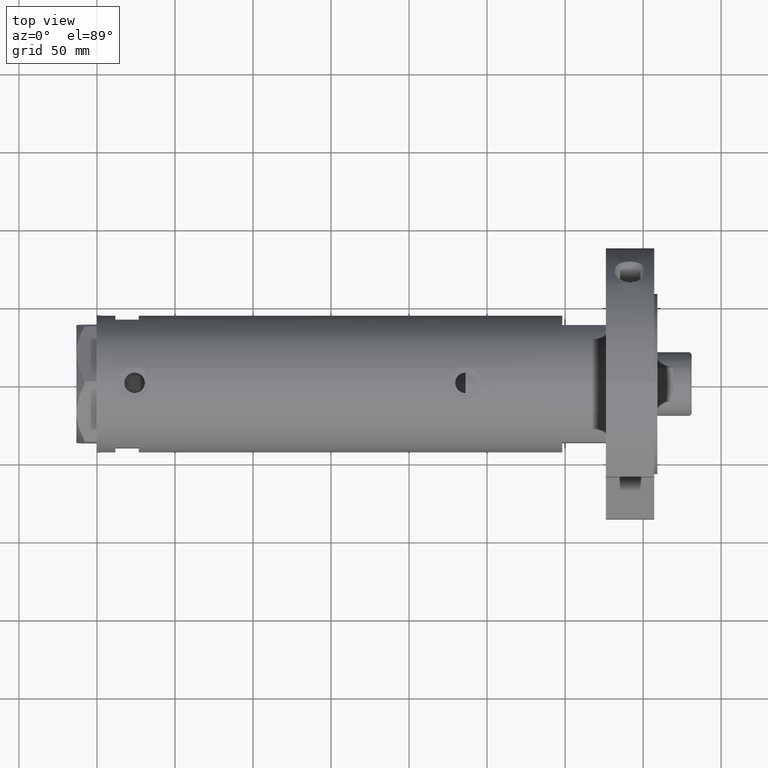
[diagram: clean part render]
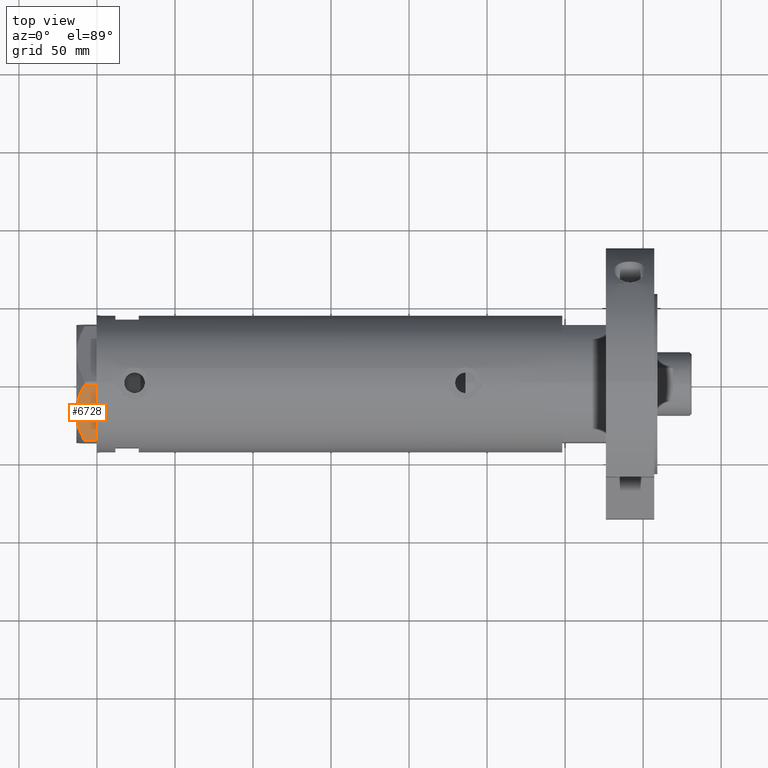
[diagram: same view with one face highlighted and labeled with its STEP entity id]
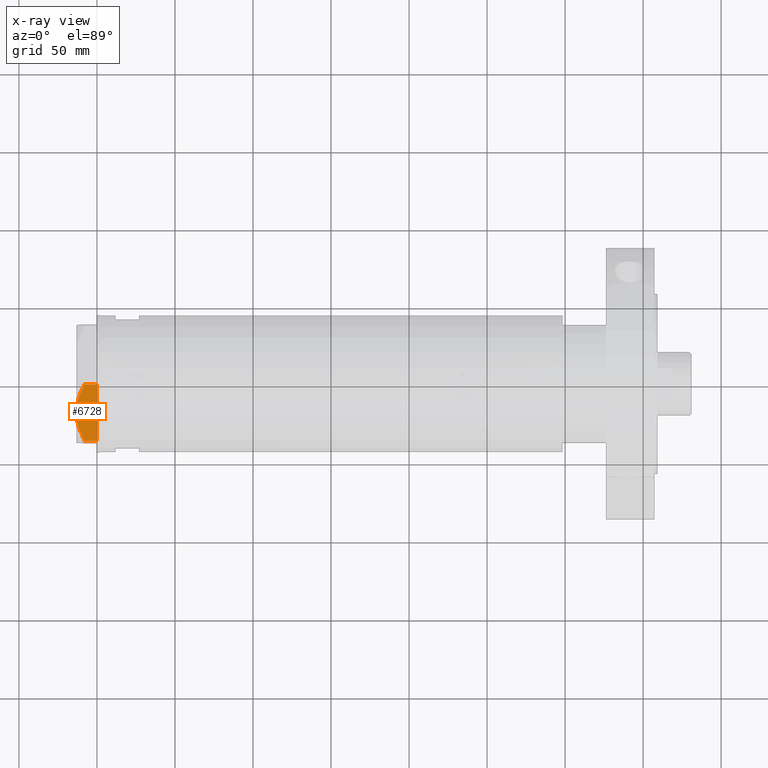
[diagram: x-ray of the same camera — body ghosted, the highlighted face saturated]
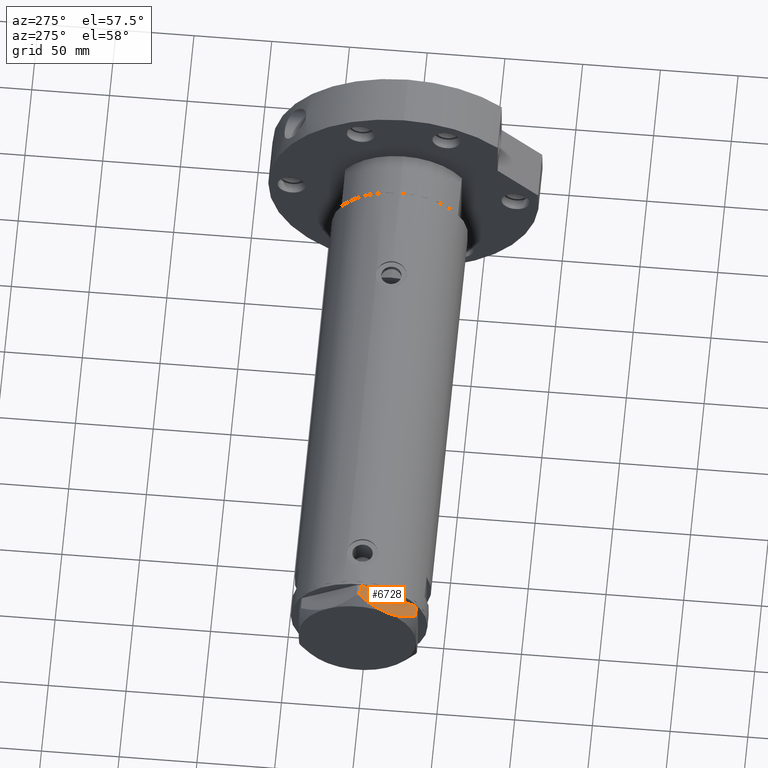
[diagram: same view with one face highlighted and labeled with its STEP entity id]
A machine part, top view. The second image highlights one B-rep face of the part: STEP entity #6728.
The next image is the same camera in x-ray: the body ghosted, the highlighted face saturated — about 0% of this face is hidden behind the body in this view.
A second angle (auxiliary view) of the same face is appended — the face is thin or edge-on in the first view.
In plain terms, the highlighted planar face has unit normal (-0, 0.5, -0.866).
Its self-contained STEP definition (entity closure, byte-faithful):
#79 = B_SPLINE_CURVE_WITH_KNOTS ( 'NONE', 3,
 ( #3138, #1855, #3602, #4172, #791, #6055, #1964, #831, #1893, #868, #7200, #4279 ),
 .UNSPECIFIED., .F., .F.,
 ( 4, 2, 2, 2, 2, 4 ),
 ( 0.02259271946349905580, 0.02789559809390664002, 0.03319847672431422425, 0.03584991603951802330, 0.03850135535472180848, 0.04380423398512939964 ),
 .UNSPECIFIED. ) ;
#135 = VERTEX_POINT ( 'NONE', #1673 ) ;
#188 = ORIENTED_EDGE ( 'NONE', *, *, #3256, .F. ) ;
#354 = CARTESIAN_POINT ( 'NONE',  ( -33.96695484073207183, -23.97911480296823683, 9.269459228581803600 ) ) ;
#472 = EDGE_CURVE ( 'NONE', #1098, #3832, #2705, .T. ) ;
#781 = CARTESIAN_POINT ( 'NONE',  ( -36.78005154776141694, -22.35497266190838772, 0.000000000000000000 ) ) ;
#791 = CARTESIAN_POINT ( 'NONE',  ( -11.20965750620535673, -37.11804654508558343, 12.01242981158399914 ) ) ;
#831 = CARTESIAN_POINT ( 'NONE',  ( -6.717640657183465258, -39.71151368207270593, 10.48240969891360663 ) ) ;
#868 = CARTESIAN_POINT ( 'NONE',  ( -3.804046002727119014, -41.39367834013252434, 9.210778219601836625 ) ) ;
#1098 = VERTEX_POINT ( 'NONE', #2118 ) ;
#1334 = AXIS2_PLACEMENT_3D ( 'NONE', #3926, #3969, #3513 ) ;
#1509 = VERTEX_POINT ( 'NONE', #2146 ) ;
#1567 = CARTESIAN_POINT ( 'NONE',  ( -31.09047021924039811, -25.63985397350626272, 10.58681170757598977 ) ) ;
#1673 = CARTESIAN_POINT ( 'NONE',  ( -0.9699484522420150912, -43.02994532381475068, 7.709124142618884790 ) ) ;
#1699 = VECTOR ( 'NONE', #6513, 1000.000000000000000 ) ;
#1762 = FACE_OUTER_BOUND ( 'NONE', #6256, .T. ) ;
#1855 = CARTESIAN_POINT ( 'NONE',  ( -17.32290914057169928, -33.58855906836025440, 12.99999999999999822 ) ) ;
#1893 = CARTESIAN_POINT ( 'NONE',  ( -5.984301592053449248, -40.13490718873278951, 10.17879673963541087 ) ) ;
#1956 = CARTESIAN_POINT ( 'NONE',  ( -37.74999999999999289, -21.79497266190838189, 0.000000000000000000 ) ) ;
#1964 = CARTESIAN_POINT ( 'NONE',  ( -8.199247025946510448, -38.85610784623428060, 11.04644118613120085 ) ) ;
#2015 = CARTESIAN_POINT ( 'NONE',  ( -22.01686507582220997, -30.87850234557913609, 12.83692902789789869 ) ) ;
#2118 = CARTESIAN_POINT ( 'NONE',  ( -36.78005154776155905, -22.35497266190830246, 7.709124142616896158 ) ) ;
#2146 = CARTESIAN_POINT ( 'NONE',  ( -18.87499999999999645, -32.69245899286255508, 13.00000000000000000 ) ) ;
#2262 = B_SPLINE_CURVE_WITH_KNOTS ( 'NONE', 3,
 ( #5635, #354, #1567, #3839, #3304, #6230, #2015, #4330, #3913, #4402 ),
 .UNSPECIFIED., .F., .F.,
 ( 4, 2, 2, 2, 4 ),
 ( 0.001231023567492484571, 0.01191187151549577550, 0.01725229548949741565, 0.01992250747649823572, 0.02259271946349905580 ),
 .UNSPECIFIED. ) ;
#2705 = LINE ( 'NONE', #5142, #2948 ) ;
#2948 = VECTOR ( 'NONE', #6237, 1000.000000000000000 ) ;
#3091 = DIRECTION ( 'NONE',  ( 0.8660254037844385966, -0.4999999999999998890, 0.000000000000000000 ) ) ;
#3138 = CARTESIAN_POINT ( 'NONE',  ( -18.87499999999999645, -32.69245899286255508, 13.00000000000000000 ) ) ;
#3229 = ORIENTED_EDGE ( 'NONE', *, *, #4293, .F. ) ;
#3256 = EDGE_CURVE ( 'NONE', #1098, #1509, #2262, .T. ) ;
#3304 = CARTESIAN_POINT ( 'NONE',  ( -25.11263918036253884, -29.09115633297249204, 12.35956205105863326 ) ) ;
#3513 = DIRECTION ( 'NONE',  ( -0.8660254037844387076, 0.4999999999999998890, 0.000000000000000000 ) ) ;
#3602 = CARTESIAN_POINT ( 'NONE',  ( -15.78316139395997908, -34.47753284435064813, 12.87183830165164800 ) ) ;
#3610 = VECTOR ( 'NONE', #3091, 1000.000000000000227 ) ;
#3832 = VERTEX_POINT ( 'NONE', #781 ) ;
#3839 = CARTESIAN_POINT ( 'NONE',  ( -26.62598697109946855, -28.21742457861298803, 11.98878493998158312 ) ) ;
#3913 = CARTESIAN_POINT ( 'NONE',  ( -19.65653997226998584, -32.24123667949004357, 13.00000000000000178 ) ) ;
#3926 = CARTESIAN_POINT ( 'NONE',  ( -37.74999999999999289, -21.79497266190838189, 13.00000000000000000 ) ) ;
#3969 = DIRECTION ( 'NONE',  ( 0.4999999999999998890, 0.8660254037844387076, -0.000000000000000000 ) ) ;
#4084 = ORIENTED_EDGE ( 'NONE', *, *, #472, .T. ) ;
#4172 = CARTESIAN_POINT ( 'NONE',  ( -12.72654504259227259, -36.24227111762220943, 12.37795492145981235 ) ) ;
#4238 = CARTESIAN_POINT ( 'NONE',  ( -0.9699484522385850571, -43.02994532381674020, 13.00000000000000000 ) ) ;
#4279 = CARTESIAN_POINT ( 'NONE',  ( -0.9699484522420150912, -43.02994532381475068, 7.709124142618884790 ) ) ;
#4293 = EDGE_CURVE ( 'NONE', #1509, #135, #79, .T. ) ;
#4330 = CARTESIAN_POINT ( 'NONE',  ( -20.44120046918716582, -31.78821273037243245, 12.96759879420491579 ) ) ;
#4402 = CARTESIAN_POINT ( 'NONE',  ( -18.87499999999999645, -32.69245899286255508, 13.00000000000000000 ) ) ;
#4750 = ORIENTED_EDGE ( 'NONE', *, *, #5977, .T. ) ;
#4804 = LINE ( 'NONE', #4238, #1699 ) ;
#4983 = CARTESIAN_POINT ( 'NONE',  ( -0.9699484522385920515, -43.02994532381674020, 0.000000000000000000 ) ) ;
#5142 = CARTESIAN_POINT ( 'NONE',  ( -36.78005154776141694, -22.35497266190838772, 13.00000000000000000 ) ) ;
#5635 = CARTESIAN_POINT ( 'NONE',  ( -36.78005154776155905, -22.35497266190830246, 7.709124142616896158 ) ) ;
#5735 = PLANE ( 'NONE',  #1334 ) ;
#5977 = EDGE_CURVE ( 'NONE', #3832, #7503, #7157, .T. ) ;
#6055 = CARTESIAN_POINT ( 'NONE',  ( -8.949419886525276979, -38.42299534324038746, 11.30742055474529195 ) ) ;
#6130 = ORIENTED_EDGE ( 'NONE', *, *, #6415, .T. ) ;
#6230 = CARTESIAN_POINT ( 'NONE',  ( -22.79667224021351757, -30.42828046930181074, 12.73960743196720280 ) ) ;
#6237 = DIRECTION ( 'NONE',  ( -0.000000000000000000, 0.000000000000000000, -1.000000000000000000 ) ) ;
#6256 = EDGE_LOOP ( 'NONE', ( #188, #4084, #4750, #6130, #3229 ) ) ;
#6415 = EDGE_CURVE ( 'NONE', #7503, #135, #4804, .T. ) ;
#6513 = DIRECTION ( 'NONE',  ( 0.000000000000000000, 0.000000000000000000, 1.000000000000000000 ) ) ;
#6728 = ADVANCED_FACE ( 'NONE', ( #1762 ), #5735, .F. ) ;
#7157 = LINE ( 'NONE', #1956, #3610 ) ;
#7200 = CARTESIAN_POINT ( 'NONE',  ( -2.376799045726867732, -42.21769975495670479, 8.489459328479822986 ) ) ;
#7503 = VERTEX_POINT ( 'NONE', #4983 ) ;